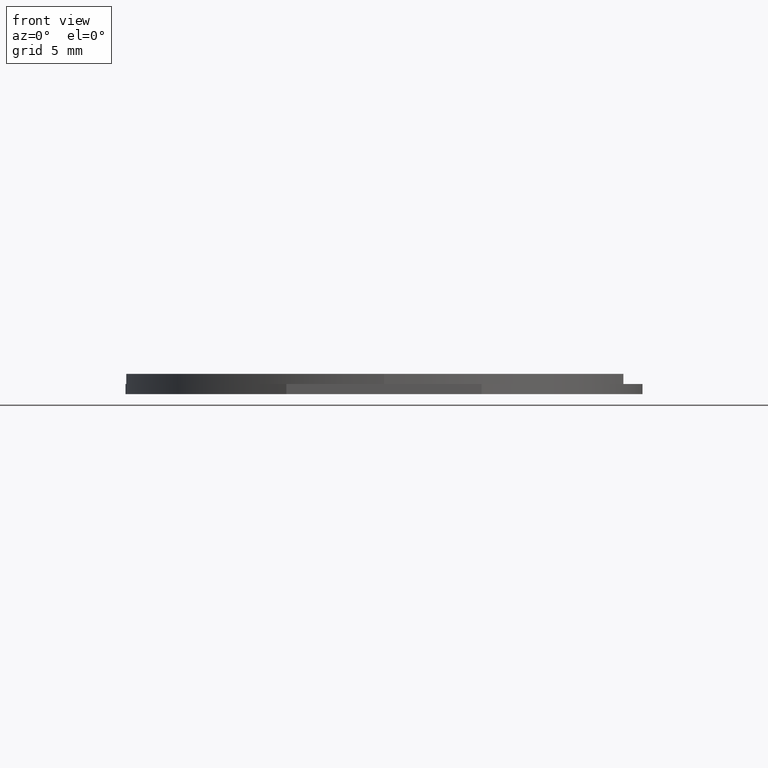
[diagram: clean part render]
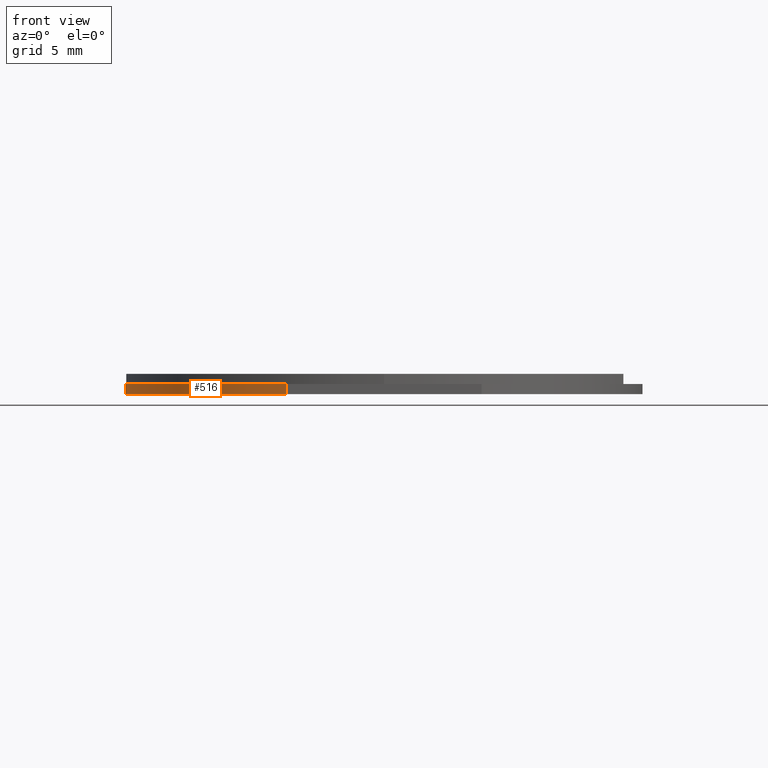
[diagram: same view with one face highlighted and labeled with its STEP entity id]
A machine part, front view. The second image highlights one B-rep face of the part: STEP entity #516.
In plain terms, the highlighted cylindrical surface (partial cylindrical patch) has radius 12.7 mm, axis along (-0, -0, -1).
Its self-contained STEP definition (entity closure, byte-faithful):
#56 = DIRECTION ( 'NONE',  ( 0.0000000000000000000, 0.0000000000000000000, 1.000000000000000000 ) ) ;
#62 = CIRCLE ( 'NONE', #249, 12.69999999999999929 ) ;
#63 = LINE ( 'NONE', #374, #275 ) ;
#65 = EDGE_CURVE ( 'NONE', #551, #133, #62, .T. ) ;
#80 = ORIENTED_EDGE ( 'NONE', *, *, #402, .T. ) ;
#84 = DIRECTION ( 'NONE',  ( 0.0000000000000000000, 0.0000000000000000000, 1.000000000000000000 ) ) ;
#90 = ORIENTED_EDGE ( 'NONE', *, *, #106, .T. ) ;
#106 = EDGE_CURVE ( 'NONE', #295, #417, #152, .T. ) ;
#133 = VERTEX_POINT ( 'NONE', #393 ) ;
#143 = DIRECTION ( 'NONE',  ( 1.000000000000000000, 0.0000000000000000000, 0.0000000000000000000 ) ) ;
#152 = CIRCLE ( 'NONE', #456, 12.69999999999999929 ) ;
#170 = CARTESIAN_POINT ( 'NONE',  ( -0.5204243491758187012, -0.8299026143560144231, 3.986184743181585777 ) ) ;
#194 = DIRECTION ( 'NONE',  ( -0.0000000000000000000, -0.0000000000000000000, -1.000000000000000000 ) ) ;
#200 = CARTESIAN_POINT ( 'NONE',  ( 7.384536547751088698, -12.58990261435601354, 3.486184743181585333 ) ) ;
#223 = CARTESIAN_POINT ( 'NONE',  ( 12.17957565082418014, -0.8299026143560144231, 3.986184743181585777 ) ) ;
#248 = CYLINDRICAL_SURFACE ( 'NONE', #298, 12.69999999999999929 ) ;
#249 = AXIS2_PLACEMENT_3D ( 'NONE', #223, #56, #474 ) ;
#251 = ORIENTED_EDGE ( 'NONE', *, *, #523, .T. ) ;
#275 = VECTOR ( 'NONE', #84, 1000.000000000000000 ) ;
#283 = VECTOR ( 'NONE', #194, 1000.000000000000000 ) ;
#295 = VERTEX_POINT ( 'NONE', #333 ) ;
#298 = AXIS2_PLACEMENT_3D ( 'NONE', #300, #421, #384 ) ;
#300 = CARTESIAN_POINT ( 'NONE',  ( 12.17957565082418014, -0.8299026143560144231, 3.986184743181585777 ) ) ;
#333 = CARTESIAN_POINT ( 'NONE',  ( -0.5204243491758187012, -0.8299026143560144231, 3.486184743181585333 ) ) ;
#352 = DIRECTION ( 'NONE',  ( 0.0000000000000000000, 0.0000000000000000000, 1.000000000000000000 ) ) ;
#355 = CARTESIAN_POINT ( 'NONE',  ( 12.17957565082418014, -0.8299026143560144231, 3.486184743181585333 ) ) ;
#374 = CARTESIAN_POINT ( 'NONE',  ( 7.384536547751088698, -12.58990261435601354, 3.986184743181585777 ) ) ;
#384 = DIRECTION ( 'NONE',  ( -1.000000000000000000, 0.0000000000000000000, 0.0000000000000000000 ) ) ;
#393 = CARTESIAN_POINT ( 'NONE',  ( 7.384536547751088698, -12.58990261435601354, 3.986184743181585777 ) ) ;
#402 = EDGE_CURVE ( 'NONE', #551, #295, #488, .T. ) ;
#417 = VERTEX_POINT ( 'NONE', #200 ) ;
#421 = DIRECTION ( 'NONE',  ( -0.0000000000000000000, -0.0000000000000000000, -1.000000000000000000 ) ) ;
#422 = ORIENTED_EDGE ( 'NONE', *, *, #65, .F. ) ;
#441 = FACE_OUTER_BOUND ( 'NONE', #458, .T. ) ;
#456 = AXIS2_PLACEMENT_3D ( 'NONE', #355, #352, #143 ) ;
#458 = EDGE_LOOP ( 'NONE', ( #422, #80, #90, #251 ) ) ;
#474 = DIRECTION ( 'NONE',  ( 1.000000000000000000, 0.0000000000000000000, 0.0000000000000000000 ) ) ;
#479 = CARTESIAN_POINT ( 'NONE',  ( -0.5204243491758187012, -0.8299026143560144231, 3.986184743181585777 ) ) ;
#488 = LINE ( 'NONE', #479, #283 ) ;
#516 = ADVANCED_FACE ( 'NONE', ( #441 ), #248, .T. ) ;
#523 = EDGE_CURVE ( 'NONE', #417, #133, #63, .T. ) ;
#551 = VERTEX_POINT ( 'NONE', #170 ) ;